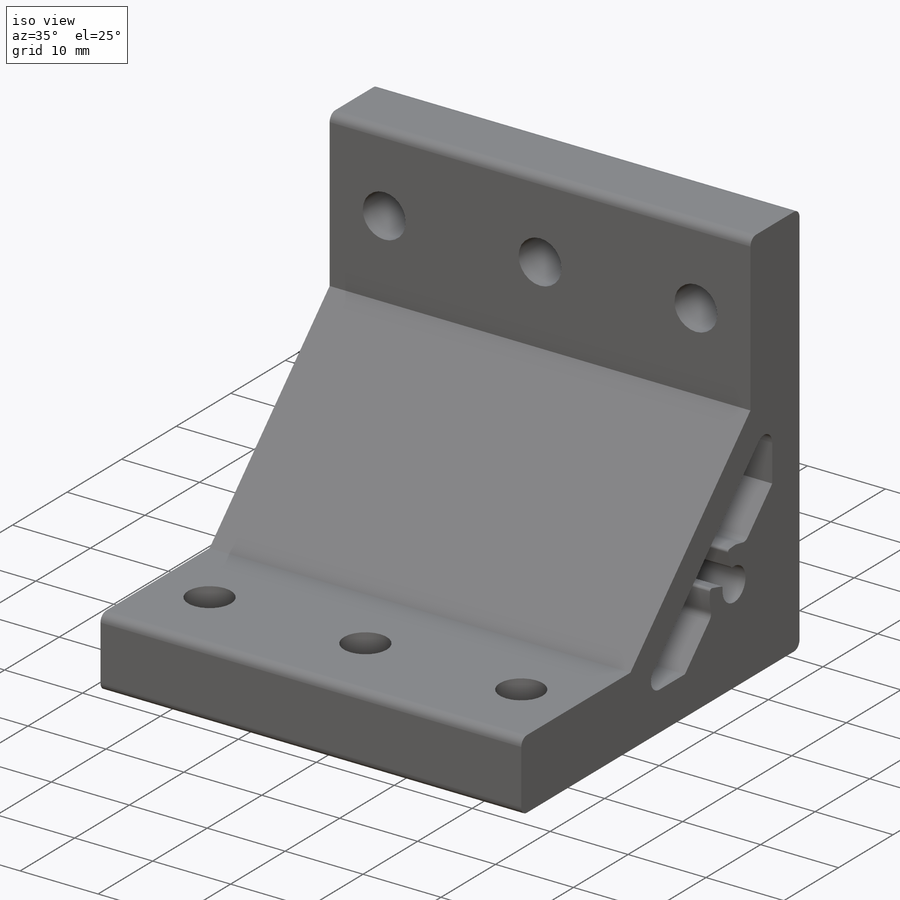
[diagram: iso view]
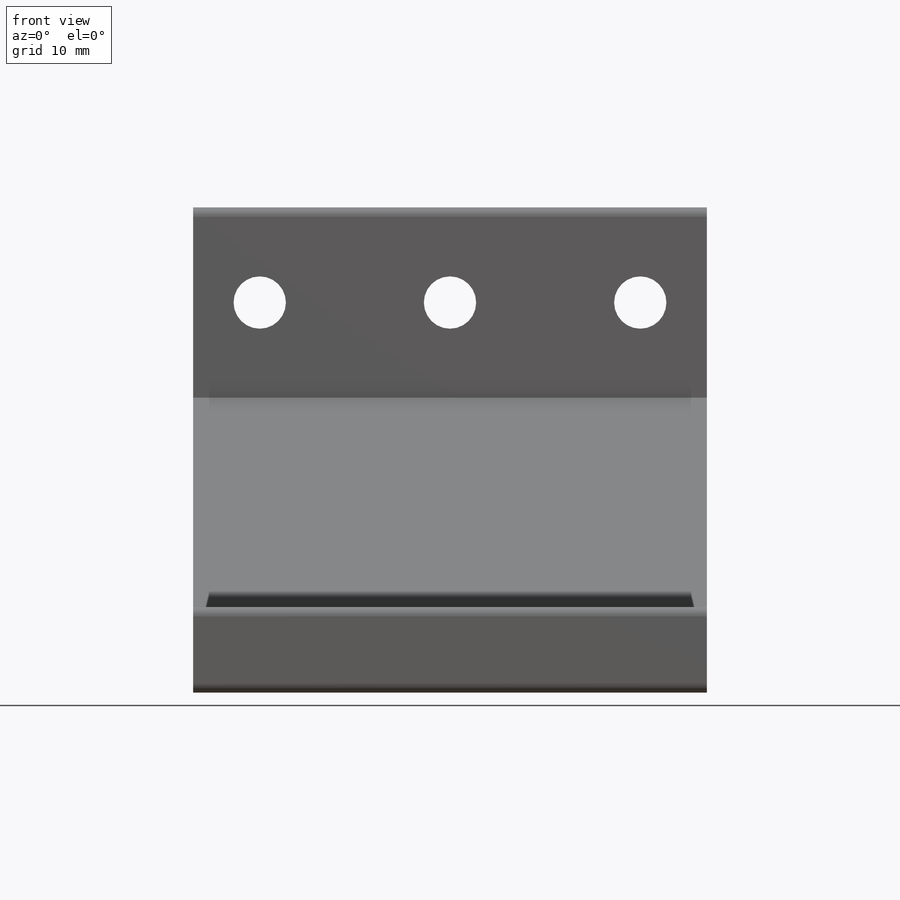
[diagram: front view]
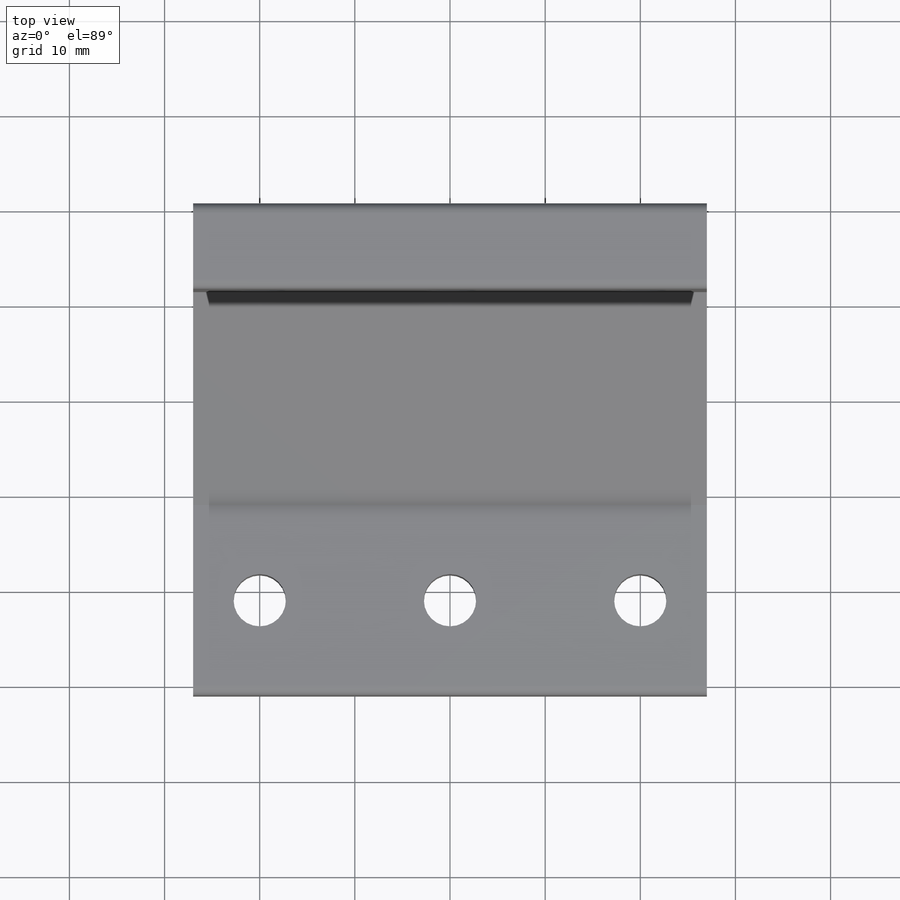
[diagram: top view]
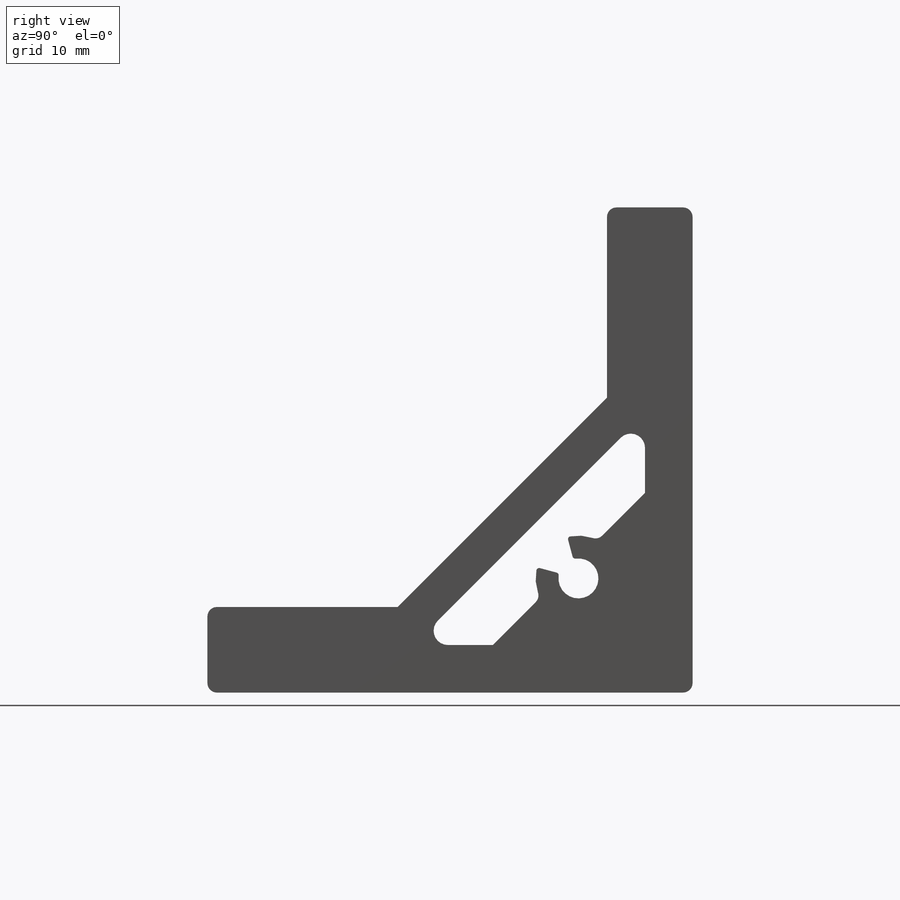
[diagram: right view]
SOLIDWORKS PART (.sldprt)
format: sldprt  version: not decoded by parser v0  size: 444,416 bytes
history: native  units: mm
features: sketch x4, cut_extrude x3, material x1, plane x1, extrude x1 (+16 scaffold rows collapsed)
feature tree (26):
  scaffold x16  (default folders/planes/origin — collapsed)
  material  "Material <not specified>"
  plane  "Plane1"
  sketch  "Sketch1"  dims[c1.D7=2.1mm c1.D13=4.5mm c1.D14=1.0mm c1.D1=9.0mm c1.D2=9.0mm c1.D3=51.0mm c1.D4=51.0mm c1.D5=5.0mm c1.D6=5.0mm c1.D8=~39.192771mm c2.D8=45.0deg c2.D9=19.0mm c2.D10=19.0mm c3.D9=20.0mm c3.D10=20.0mm c3.D8=12.0mm c3.D11=4.0mm c3.D12=5.9mm]
  extrude  "Boss-Extrude1"  Depth=27mm
  sketch  "Sketch6"  dims[D3=5.5mm D1=20.0mm D2=41.0mm]
  cut_extrude  "Cut-Extrude5"  [1 undecoded]
  sketch  "Sketch7"  dims[D2=5.5mm D1=41.0mm D3=20.0mm]
  cut_extrude  "Cut-Extrude6"  [1 undecoded]
  sketch  "Sketch9"  dims[D1=4.8mm]
  cut_extrude  "Cut-Extrude7"  Depth=10mm
decode coverage: 6 of 8 modeling features carry decoded parameters
note: ~ marks probable driven/reference dimensions
note: 2 parameter values undecoded
note: suppression state not decoded; provenance and decode notes live in map.json
